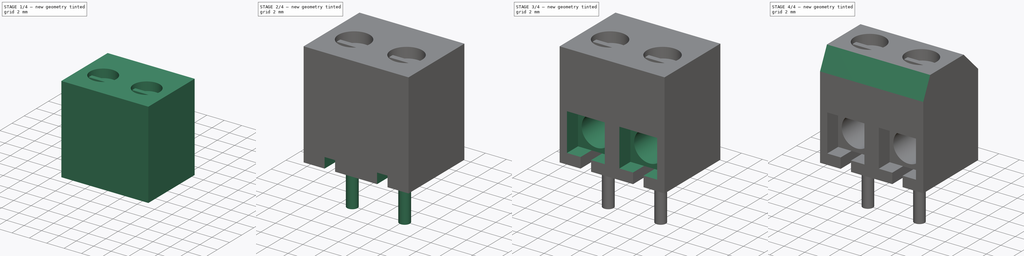
[diagram: build sequence overview — one tinted view per stage of 4, left to right]
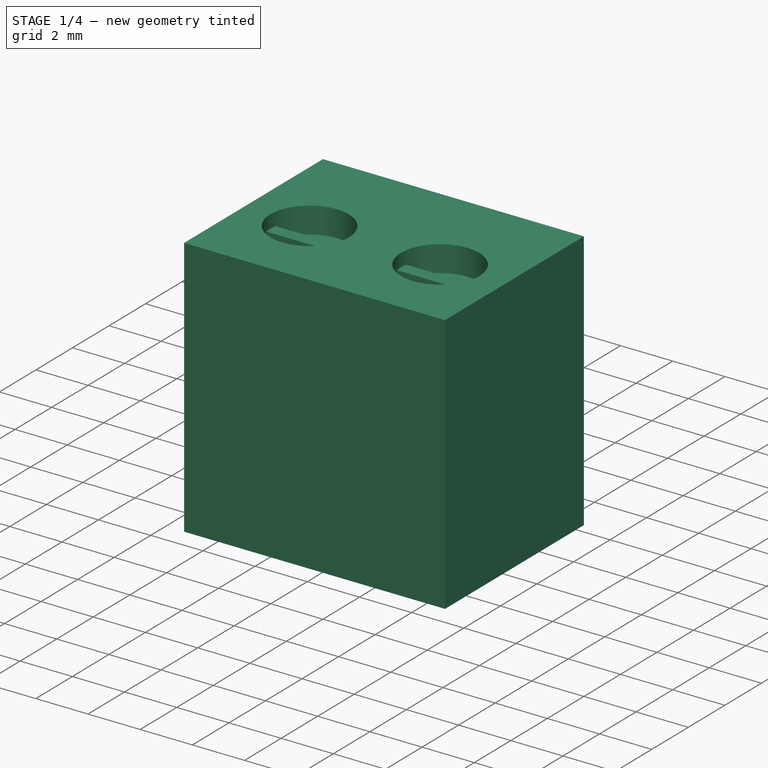
[diagram: stage 1 of 4 — iso view after this stage's code; geometry added in this stage tinted green]
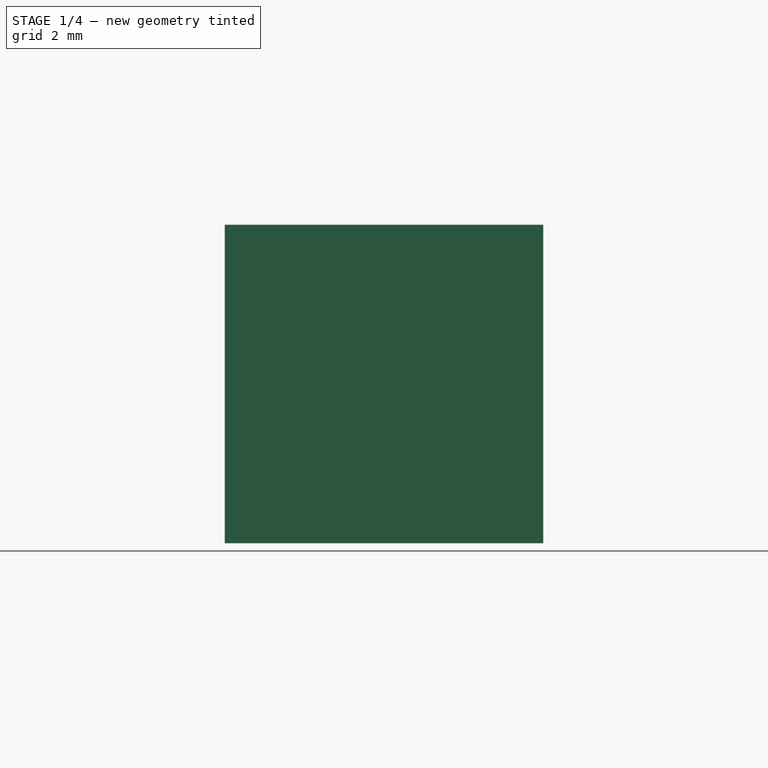
[diagram: stage 1 of 4 — front view after this stage's code; geometry added in this stage tinted green]
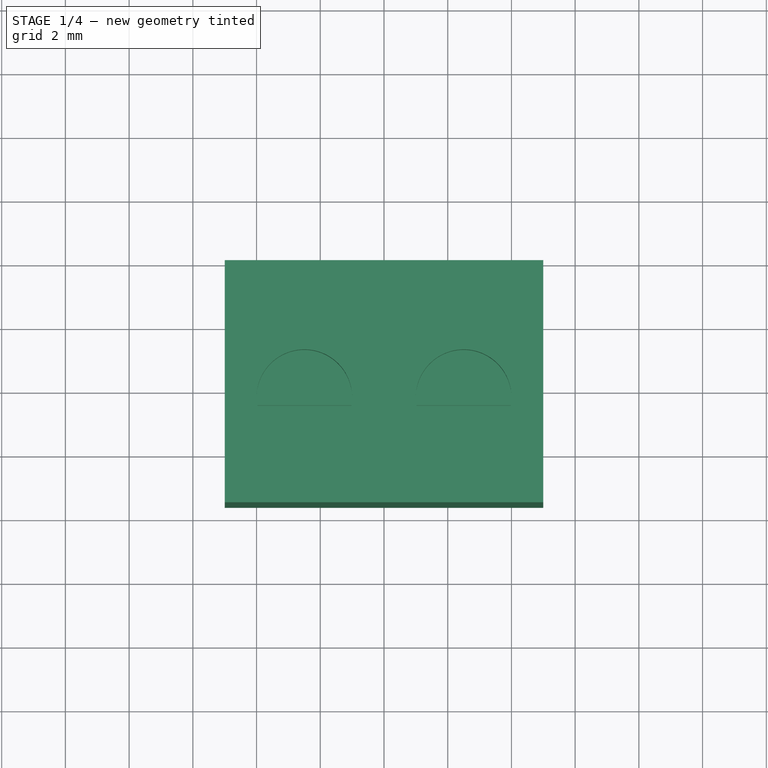
[diagram: stage 1 of 4 — top view after this stage's code; geometry added in this stage tinted green]
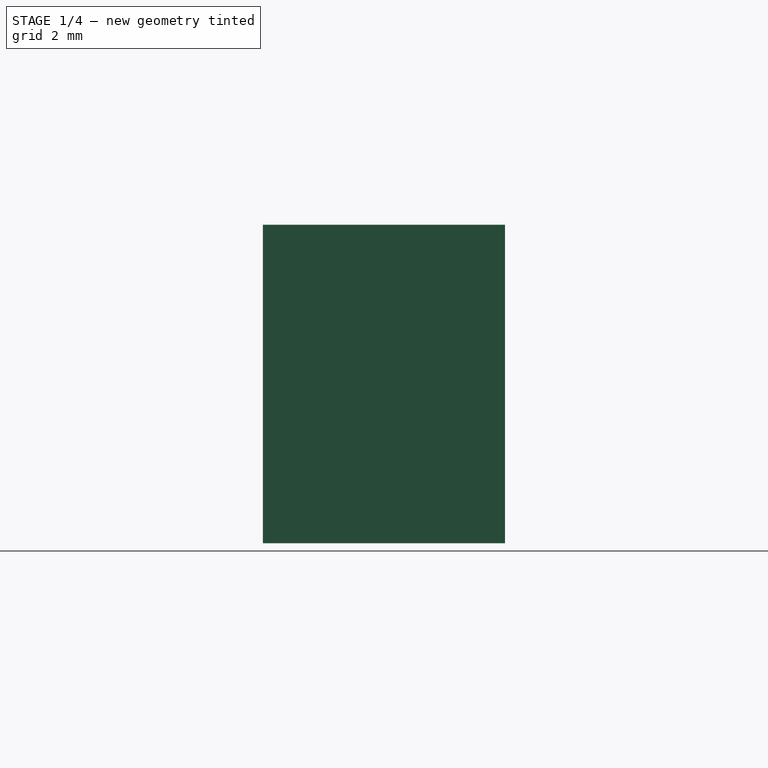
[diagram: stage 1 of 4 — right view after this stage's code; geometry added in this stage tinted green]
FCSTD DOCUMENT  (FreeCAD 0.19R24276 (Git))
Label: borne
License: All rights reserved
LicenseURL: http://en.wikipedia.org/wiki/All_rights_reserved
objects: Sketcher::SketchObject×11, PartDesign::Pocket×6, PartDesign::Pad×4, PartDesign::Chamfer×1, PartDesign::Body×1
note: 34 computed .brp shape members not serialized (recipe doc carries the construction recipe); baked Part::Feature solids carry a one-line shape summary decoded from their .brp

FEATURE [Sketcher::SketchObject] Sketch
  FullyConstrained = true
  MapMode = 5
  Support = -> [XY_Plane]
  sketch-geometry (4):
    g0: LineSegment StartX=-5 StartY=0 StartZ=0 EndX=5 EndY=-6e-15 EndZ=0
    g1: LineSegment StartX=5 StartY=-6e-15 StartZ=0 EndX=5 EndY=-7.6 EndZ=0
    g2: LineSegment StartX=-5 StartY=0 StartZ=0 EndX=-5 EndY=-7.6 EndZ=0
    g3: LineSegment StartX=5 StartY=-7.6 StartZ=0 EndX=-5 EndY=-7.6 EndZ=0
  constraints (11):
    c: PointOnObject(g0,g-1)
    c: Coincident(g1,g0)
    c: Vertical(g1)
    c: Symmetric(g0,g0,g-1)
    c: DistanceX(g0,g0) = 10
    c: DistanceY(g1,g0) = 7.6
    c: Coincident(g2,g0)
    c: Vertical(g2)
    c: Coincident(g3,g1)
    c: Coincident(g3,g2)
    c: Horizontal(g3)
FEATURE [PartDesign::Pad] Pad
  Direction = (1,1,1)
  Length = 10
  Length2 = 100
  Profile = -> Sketch
  Type = 0
FEATURE [Sketcher::SketchObject] Sketch001
  FullyConstrained = true
  MapMode = 5
  Placement = pos=(0,0,10) rot=(0,0,1;0rad)
  Support = -> [Pad]
  sketch-geometry (19):
    g0: LineSegment StartX=0 StartY=0 StartZ=0 EndX=0 EndY=-4.3 EndZ=0
    g1: LineSegment StartX=0 StartY=-4.3 StartZ=0 EndX=2.5 EndY=-4.3 EndZ=0
    g2: LineSegment StartX=0 StartY=-4.3 StartZ=0 EndX=-2.5 EndY=-4.3 EndZ=0
    g3: ArcOfCircle CenterX=2.5 CenterY=-4.3 CenterZ=0 NormalX=0 NormalY=0 NormalZ=1 AngleXU=0 Radius=1.5 StartAngle=2.97414 EndAngle=3.30904
    g4: ArcOfCircle CenterX=-2.5 CenterY=-4.3 CenterZ=0 NormalX=0 NormalY=0 NormalZ=1 AngleXU=0 Radius=1.5 StartAngle=2.97414 EndAngle=3.30904
    g5: LineSegment StartX=2.5 StartY=-4.3 StartZ=0 EndX=2.5 EndY=-4.05 EndZ=0
    g6: LineSegment StartX=2.5 StartY=-4.3 StartZ=0 EndX=2.5 EndY=-4.55 EndZ=0
    g7: LineSegment StartX=2.5 StartY=-4.05 StartZ=0 EndX=3.97902 EndY=-4.05 EndZ=0
    g8: LineSegment StartX=2.5 StartY=-4.55 StartZ=0 EndX=3.97902 EndY=-4.55 EndZ=0
    g9: LineSegment StartX=2.5 StartY=-4.05 StartZ=0 EndX=1.02098 EndY=-4.05 EndZ=0
    g10: LineSegment StartX=2.5 StartY=-4.55 StartZ=0 EndX=1.02098 EndY=-4.55 EndZ=0
    g11: ArcOfCircle CenterX=2.5 CenterY=-4.3 CenterZ=0 NormalX=0 NormalY=0 NormalZ=1 AngleXU=0 Radius=1.5 StartAngle=6.11574 EndAngle=6.45063
    g12: LineSegment StartX=-2.5 StartY=-4.3 StartZ=0 EndX=-2.5 EndY=-4.05 EndZ=0
    g13: LineSegment StartX=-2.5 StartY=-4.3 StartZ=0 EndX=-2.5 EndY=-4.55 EndZ=0
    g14: LineSegment StartX=-2.5 StartY=-4.05 StartZ=0 EndX=-1.02098 EndY=-4.05 EndZ=0
    g15: LineSegment StartX=-2.5 StartY=-4.55 StartZ=0 EndX=-1.02098 EndY=-4.55 EndZ=0
    g16: LineSegment StartX=-2.5 StartY=-4.05 StartZ=0 EndX=-3.97902 EndY=-4.05 EndZ=0
    g17: LineSegment StartX=-2.5 StartY=-4.55 StartZ=0 EndX=-3.97902 EndY=-4.55 EndZ=0
    g18: ArcOfCircle CenterX=-2.5 CenterY=-4.3 CenterZ=0 NormalX=0 NormalY=0 NormalZ=1 AngleXU=0 Radius=1.5 StartAngle=6.11574 EndAngle=6.45063
  constraints (51):
    c: Coincident(g0,g-1)
    c: PointOnObject(g0,g-2)
    c: DistanceY(g0,g-1) = 4.3
    c: Coincident(g1,g0)
    c: Coincident(g2,g0)
    c: Horizontal(g1)
    c: Horizontal(g2)
    c: DistanceX(g0,g1) = 2.5
    c: DistanceX(g2,g0) = 2.5
    c: Coincident(g3,g1)
    c: Coincident(g4,g2)
    c: Diameter(g3) = 3
    c: Diameter(g4) = 3
    c: Coincident(g5,g3)
    c: Coincident(g6,g3)
    c: Vertical(g5)
    c: Symmetric(g5,g6,g3)
    c: DistanceY(g6,g5) = 0.5
    c: Coincident(g7,g5)
    c: Horizontal(g7)
    c: Coincident(g8,g6)
    c: Horizontal(g8)
    c: Coincident(g9,g7)
    c: Coincident(g10,g8)
    c: Horizontal(g10)
    c: Horizontal(g9)
    c: Coincident(g3,g9)
    c: Coincident(g11,g7)
    c: Equal(g3,g11)
    c: Coincident(g3,g10)
    c: Coincident(g11,g8)
    c: Coincident(g3,g11)
    c: Coincident(g12,g4)
    c: Coincident(g13,g4)
    c: Vertical(g12)
    c: Symmetric(g12,g13,g4)
    c: DistanceY(g13,g12) = 0.5
    c: Coincident(g14,g12)
    c: Coincident(g15,g13)
    c: Coincident(g16,g14)
    c: Coincident(g17,g15)
    c: Horizontal(g17)
    c: Horizontal(g14)
    c: Horizontal(g15)
    c: Horizontal(g16)
    c: Coincident(g4,g16)
    c: Coincident(g18,g14)
    c: Equal(g4,g18)
    c: Coincident(g4,g17)
    c: Coincident(g18,g15)
    c: Coincident(g4,g18)
FEATURE [PartDesign::Pocket] Pocket  label="tornillos medio"
  BaseFeature = -> Pad
  Length = 0.5
  Length2 = 100
  Profile = -> Sketch001
  Type = 0
FEATURE [Sketcher::SketchObject] Sketch002
  FullyConstrained = false
  MapMode = 5
  Placement = pos=(0,0,10) rot=(0,0,1;0rad)
  Support = -> [Pocket]
  sketch-geometry (23):
    g0: LineSegment StartX=0 StartY=0 StartZ=0 EndX=0 EndY=-4.3 EndZ=0
    g1: LineSegment StartX=0 StartY=-4.3 StartZ=0 EndX=2.5 EndY=-4.3 EndZ=0
    g2: LineSegment StartX=0 StartY=-4.3 StartZ=0 EndX=-2.5 EndY=-4.3 EndZ=0
    g3: ArcOfCircle CenterX=-2.5 CenterY=-4.3 CenterZ=0 NormalX=0 NormalY=0 NormalZ=1 AngleXU=0 Radius=1.5 StartAngle=0.167448 EndAngle=2.97414
    g4: ArcOfCircle CenterX=2.5 CenterY=-4.3 CenterZ=0 NormalX=0 NormalY=0 NormalZ=1 AngleXU=0 Radius=1.5 StartAngle=0.167448 EndAngle=2.97414
    g5: GeomPoint X=-3.98098 Y=-4.06187 Z=0
    g6: GeomPoint X=-3.97774 Y=-4.55744 Z=0
    g7: GeomPoint X=-1.01902 Y=-4.06187 Z=0
    g8: GeomPoint X=-1.02226 Y=-4.55744 Z=0
    g9: LineSegment StartX=2.5 StartY=-4.3 StartZ=0 EndX=2.5 EndY=-4.05 EndZ=0
    g10: LineSegment StartX=2.5 StartY=-4.3 StartZ=0 EndX=2.5 EndY=-4.55 EndZ=0
    g11: LineSegment StartX=2.5 StartY=-4.05 StartZ=0 EndX=3.97902 EndY=-4.05 EndZ=0
    g12: LineSegment StartX=2.5 StartY=-4.05 StartZ=0 EndX=1.02098 EndY=-4.05 EndZ=0
    g13: LineSegment StartX=2.5 StartY=-4.55 StartZ=0 EndX=3.97902 EndY=-4.55 EndZ=0
    g14: LineSegment StartX=2.5 StartY=-4.55 StartZ=0 EndX=1.02098 EndY=-4.55 EndZ=0
    g15: ArcOfCircle CenterX=2.5 CenterY=-4.3 CenterZ=0 NormalX=0 NormalY=0 NormalZ=1 AngleXU=0 Radius=1.5 StartAngle=3.30904 EndAngle=6.11574
    g16: LineSegment StartX=-2.5 StartY=-4.3 StartZ=0 EndX=-2.5 EndY=-4.05 EndZ=0
    g17: LineSegment StartX=-2.5 StartY=-4.3 StartZ=0 EndX=-2.5 EndY=-4.55 EndZ=0
    g18: LineSegment StartX=-2.5 StartY=-4.05 StartZ=0 EndX=-1.02098 EndY=-4.05 EndZ=0
    g19: LineSegment StartX=-2.5 StartY=-4.55 StartZ=0 EndX=-1.02098 EndY=-4.55 EndZ=0
    g20: LineSegment StartX=-2.5 StartY=-4.05 StartZ=0 EndX=-3.97902 EndY=-4.05 EndZ=0
    g21: LineSegment StartX=-2.5 StartY=-4.55 StartZ=0 EndX=-3.97902 EndY=-4.55 EndZ=0
    g22: ArcOfCircle CenterX=-2.5 CenterY=-4.3 CenterZ=0 NormalX=0 NormalY=0 NormalZ=1 AngleXU=0 Radius=1.5 StartAngle=3.30904 EndAngle=6.11574
  constraints (56):
    c: Coincident(g0,g-1)
    c: PointOnObject(g0,g-2)
    c: Coincident(g1,g0)
    c: Horizontal(g1)
    c: Coincident(g2,g0)
    c: Horizontal(g2)
    c: DistanceX(g0,g1) = 2.5
    c: DistanceX(g2,g0) = 2.5
    c: DistanceY(g0,g-1) = 4.3
    c: Coincident(g3,g2)
    c: Coincident(g4,g1)
    c: Diameter(g4) = 3
    c: Diameter(g3) = 3
    c: PointOnObject(g5,g3)
    c: PointOnObject(g6,g3)
    c: PointOnObject(g7,g3)
    c: PointOnObject(g8,g3)
    c: Coincident(g9,g4)
    c: Vertical(g9)
    c: Coincident(g10,g4)
    c: Symmetric(g9,g10,g4)
    c: DistanceY(g10,g9) = 0.5
    c: Coincident(g11,g9)
    c: Horizontal(g11)
    c: Coincident(g12,g11)
    c: Horizontal(g12)
    c: Coincident(g13,g10)
    c: Horizontal(g13)
    c: Coincident(g14,g13)
    c: Horizontal(g14)
    c: PointOnObject(g14,g4)
    c: Coincident(g4,g11)
    c: Coincident(g15,g13)
    c: Equal(g4,g15)
    c: Coincident(g4,g12)
    c: Coincident(g4,g15)
    c: PointOnObject(g15,g14)
    c: Coincident(g16,g3)
    c: Coincident(g17,g3)
    c: Vertical(g17)
    c: Symmetric(g16,g17,g3)
    c: DistanceY(g17,g16) = 0.5
    c: Coincident(g18,g16)
    c: Horizontal(g18)
    c: Coincident(g19,g17)
    c: Horizontal(g19)
    c: Coincident(g20,g18)
    c: Horizontal(g20)
    c: Coincident(g21,g19)
    c: Horizontal(g21)
    c: Coincident(g3,g18)
    c: Coincident(g22,g19)
    c: Equal(g3,g22)
    c: Coincident(g3,g20)
    c: Coincident(g22,g21)
    c: Coincident(g3,g22)
FEATURE [PartDesign::Pocket] Pocket001  label="tornillo circulo"
  BaseFeature = -> Pocket
  Length = 1
  Length2 = 100
  Profile = -> Sketch002
  Type = 0
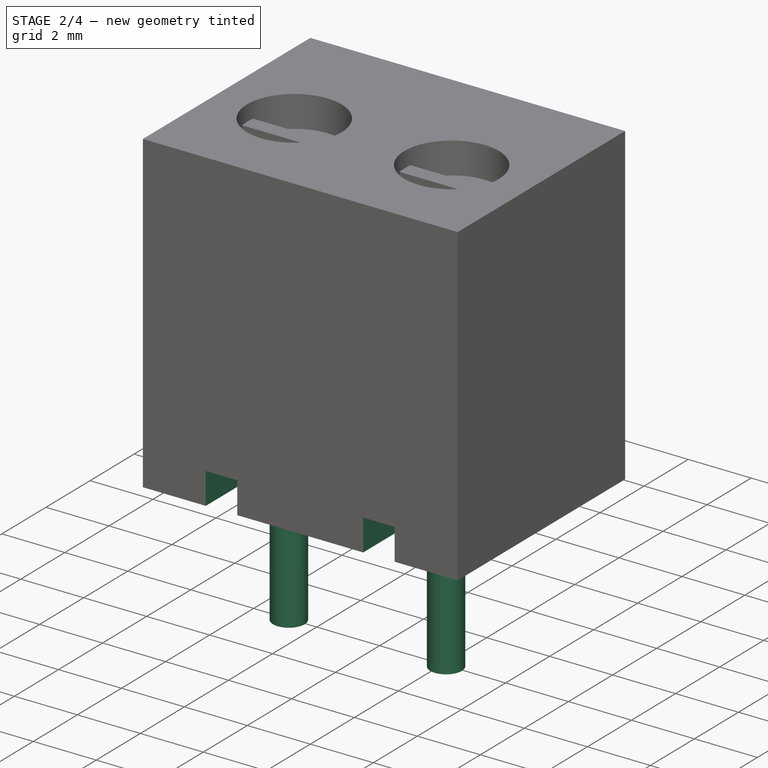
[diagram: stage 2 of 4 — iso view after this stage's code; geometry added in this stage tinted green]
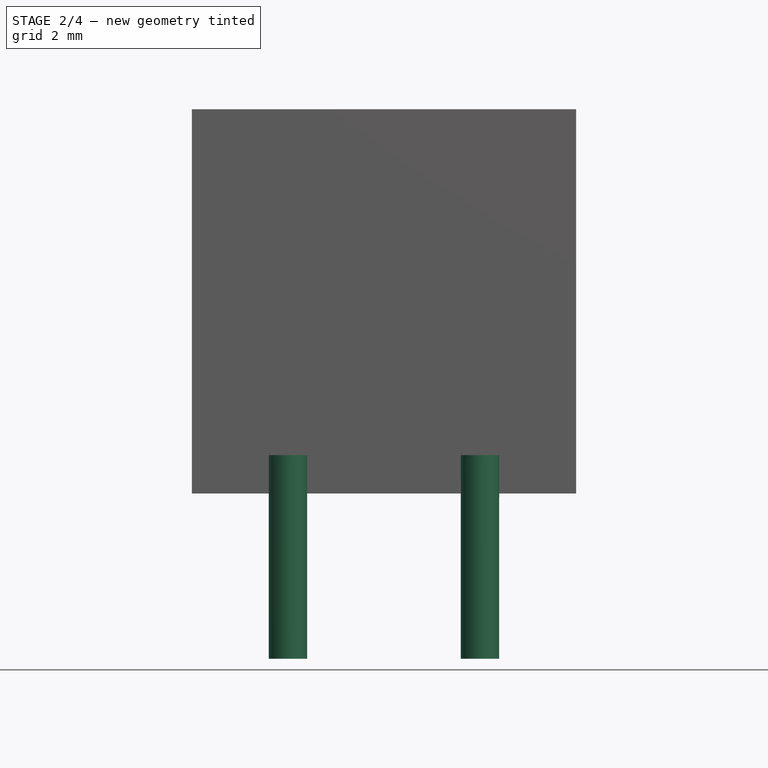
[diagram: stage 2 of 4 — front view after this stage's code; geometry added in this stage tinted green]
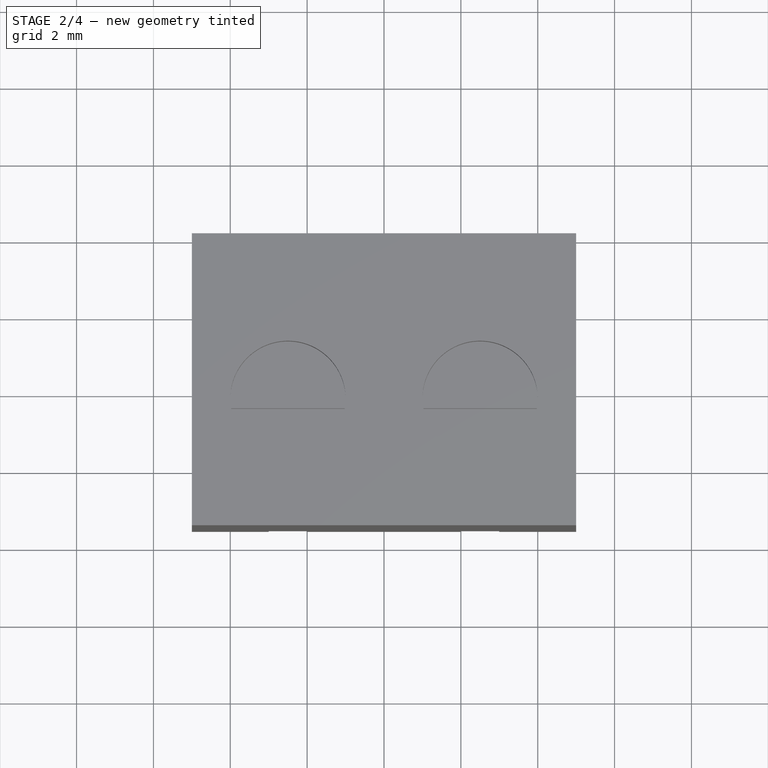
[diagram: stage 2 of 4 — top view after this stage's code; geometry added in this stage tinted green]
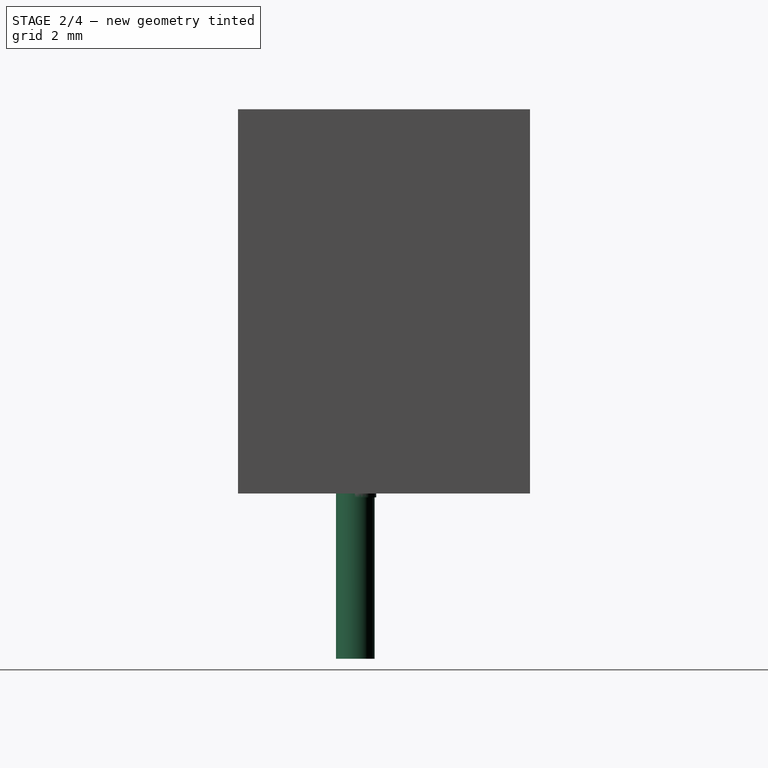
[diagram: stage 2 of 4 — right view after this stage's code; geometry added in this stage tinted green]
FEATURE [Sketcher::SketchObject] Sketch003
  FullyConstrained = true
  MapMode = 5
  Placement = pos=(0,0,0) rot=(1,0,0;3.14159rad)
  Support = -> [Pocket001]
  sketch-geometry (7):
    g0: LineSegment StartX=0 StartY=0 StartZ=0 EndX=5 EndY=0 EndZ=0
    g1: LineSegment StartX=0 StartY=0 StartZ=0 EndX=-5 EndY=0 EndZ=0
    g2: LineSegment StartX=0 StartY=0 StartZ=0 EndX=0 EndY=4.5 EndZ=0
    g3: LineSegment StartX=0 StartY=4.5 StartZ=0 EndX=2.5 EndY=4.5 EndZ=0
    g4: LineSegment StartX=0 StartY=4.5 StartZ=0 EndX=-2.5 EndY=4.5 EndZ=0
    g5: Circle CenterX=-2.5 CenterY=4.5 CenterZ=0 NormalX=0 NormalY=0 NormalZ=1 AngleXU=0 Radius=0.5
    g6: Circle CenterX=2.5 CenterY=4.5 CenterZ=0 NormalX=0 NormalY=0 NormalZ=1 AngleXU=0 Radius=0.5
  constraints (18):
    c: Coincident(g0,g-1)
    c: PointOnObject(g0,g-1)
    c: Coincident(g1,g-1)
    c: DistanceX(g1,g0) = 10
    c: Symmetric(g1,g0,g-1)
    c: Coincident(g2,g-1)
    c: PointOnObject(g2,g-2)
    c: DistanceY(g-1,g2) = 4.5
    c: Coincident(g3,g2)
    c: Coincident(g4,g2)
    c: Horizontal(g3)
    c: Horizontal(g4)
    c: DistanceX(g2,g3) = 2.5
    c: DistanceX(g4,g2) = 2.5
    c: Coincident(g5,g4)
    c: Coincident(g6,g3)
    c: Diameter(g6) = 1
    c: Diameter(g5) = 1
FEATURE [PartDesign::Pad] Pad001  label="pines"
  BaseFeature = -> Pocket001
  Direction = (1,1,1)
  Length = 0.1
  Length2 = 100
  Profile = -> Sketch003
  Type = 0
FEATURE [Sketcher::SketchObject] Sketch004
  FullyConstrained = false
  MapMode = 5
  Placement = pos=(0,-7.6,0) rot=(1,0,0;1.5708rad)
  Support = -> [Pad001]
  sketch-geometry (16):
    g0: LineSegment StartX=0 StartY=0 StartZ=0 EndX=5 EndY=0 EndZ=0
    g1: LineSegment StartX=0 StartY=0 StartZ=0 EndX=-5 EndY=0 EndZ=0
    g2: GeomPoint X=-2.5 Y=0 Z=0
    g3: GeomPoint X=2.5 Y=0 Z=0
    g4: LineSegment StartX=-2.5 StartY=0 StartZ=0 EndX=-2 EndY=0 EndZ=0
    g5: LineSegment StartX=-2.5 StartY=0 StartZ=0 EndX=-3 EndY=0 EndZ=0
    g6: LineSegment StartX=2.5 StartY=0 StartZ=0 EndX=3 EndY=0 EndZ=0
    g7: LineSegment StartX=2.5 StartY=0 StartZ=0 EndX=2 EndY=0 EndZ=0
    g8: LineSegment StartX=-2 StartY=0 StartZ=0 EndX=-2 EndY=1 EndZ=0
    g9: LineSegment StartX=-3 StartY=0 StartZ=0 EndX=-3 EndY=1 EndZ=0
    g10: LineSegment StartX=-3 StartY=1 StartZ=0 EndX=-2 EndY=1 EndZ=0
    g11: LineSegment StartX=2 StartY=0 StartZ=0 EndX=1.99685 EndY=1 EndZ=0
    g12: LineSegment StartX=1.99685 StartY=1 StartZ=0 EndX=3 EndY=1 EndZ=0
    g13: LineSegment StartX=3 StartY=1 StartZ=0 EndX=3 EndY=0 EndZ=0
    g14: LineSegment StartX=-3 StartY=0 StartZ=0 EndX=-2 EndY=0 EndZ=0
    g15: LineSegment StartX=2 StartY=0 StartZ=0 EndX=3 EndY=0 EndZ=0
  constraints (38):
    c: Coincident(g0,g-1)
    c: Horizontal(g0)
    c: Coincident(g1,g-1)
    c: Symmetric(g1,g0,g-1)
    c: DistanceX(g1,g0) = 10
    c: PointOnObject(g2,g1)
    c: PointOnObject(g3,g0)
    c: DistanceX(g-1,g3) = 2.5
    c: DistanceX(g2,g-1) = 2.5
    c: Coincident(g4,g2)
    c: PointOnObject(g4,g1)
    c: Coincident(g5,g2)
    c: Coincident(g6,g3)
    c: PointOnObject(g6,g0)
    c: Coincident(g7,g3)
    c: Symmetric(g7,g6,g3)
    c: Symmetric(g5,g4,g2)
    c: DistanceX(g7,g6) = 1
    c: DistanceX(g5,g4) = 1
    c: Coincident(g8,g4)
    c: Vertical(g8)
    c: Coincident(g9,g5)
    c: Vertical(g9)
    c: Coincident(g10,g9)
    c: Coincident(g10,g8)
    c: Horizontal(g10)
    c: Coincident(g11,g7)
    c: Coincident(g13,g12)
    c: Coincident(g12,g11)
    c: Horizontal(g12)
    c: Vertical(g13)
    c: Coincident(g13,g6)
    c: DistanceY(g13,g12) = 1
    c: DistanceY(g8,g8) = 1
    c: Coincident(g14,g9)
    c: Coincident(g14,g8)
    c: Coincident(g15,g11)
    c: Coincident(g15,g13)
FEATURE [PartDesign::Pocket] Pocket002  label="vaciado pines front"
  BaseFeature = -> Pad001
  Length = 3.05
  Length2 = 100
  Profile = -> Sketch004
  Type = 0
FEATURE [Sketcher::SketchObject] Sketch005
  FullyConstrained = true
  MapMode = 5
  Placement = pos=(0,2e-16,1) rot=(1,0,0;3.14159rad)
  Support = -> [Pocket002]
FEATURE [Sketcher::SketchObject] Sketch006
  ExternalGeometry = -> [Pocket002]
  FullyConstrained = false
  MapMode = 5
  Placement = pos=(0,2e-16,1) rot=(1,0,0;3.14159rad)
  Support = -> [Pocket002]
  sketch-geometry (7):
    g0: LineSegment StartX=-3 StartY=7.6 StartZ=0 EndX=-2 EndY=7.6 EndZ=0
    g1: GeomPoint X=-2.5 Y=7.6 Z=0
    g2: GeomPoint X=2.49685 Y=7.6 Z=0
    g3: LineSegment StartX=-2.5 StartY=7.6 StartZ=0 EndX=-2.5 EndY=4.5 EndZ=0
    g4: LineSegment StartX=2.49685 StartY=7.6 StartZ=0 EndX=2.49685 EndY=4.5 EndZ=0
    g5: Circle CenterX=-2.5 CenterY=4.54509 CenterZ=0 NormalX=0 NormalY=0 NormalZ=1 AngleXU=0 Radius=0.5
    g6: Circle CenterX=2.49685 CenterY=4.54997 CenterZ=0 NormalX=0 NormalY=0 NormalZ=1 AngleXU=0 Radius=0.5
  constraints (16):
    c: Coincident(g0,g-4)
    c: Coincident(g0,g-4)
    c: PointOnObject(g1,g0)
    c: DistanceX(g0,g1) = 0.5
    c: PointOnObject(g2,g-3)
    c: DistanceX(g-3,g2) = 0.5
    c: Coincident(g3,g1)
    c: Vertical(g3)
    c: Coincident(g4,g2)
    c: Vertical(g4)
    c: DistanceY(g4,g2) = 3.1
    c: DistanceY(g3,g1) = 3.1
    c: PointOnObject(g5,g3)
    c: PointOnObject(g6,g4)
    c: Diameter(g6) = 1
    c: Diameter(g5) = 1
FEATURE [PartDesign::Pad] Pad002  label="pines largo"
  BaseFeature = -> Pocket002
  Direction = (1,1,1)
  Length = 5.3
  Length2 = 100
  Profile = -> Sketch006
  Type = 0
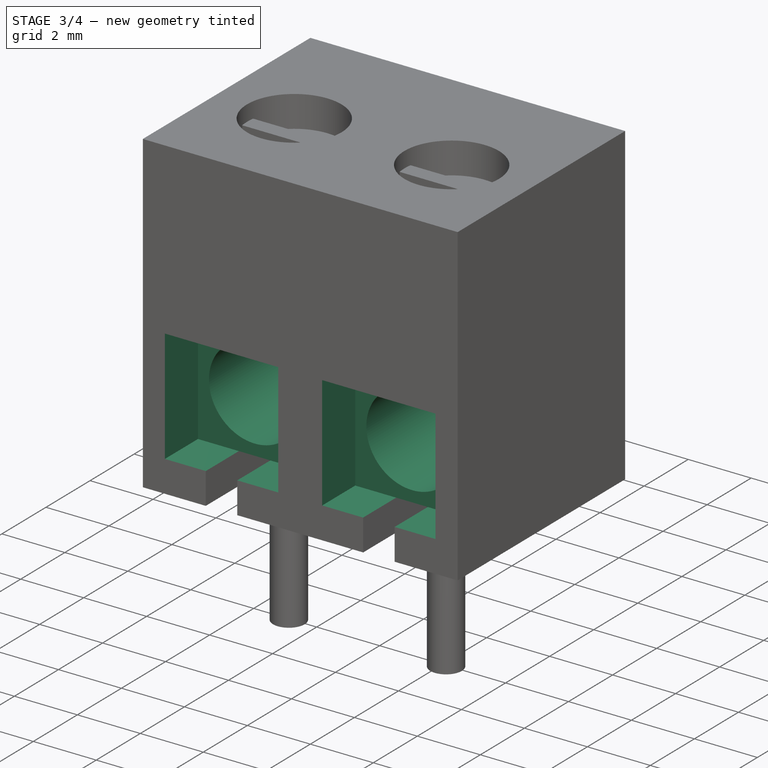
[diagram: stage 3 of 4 — iso view after this stage's code; geometry added in this stage tinted green]
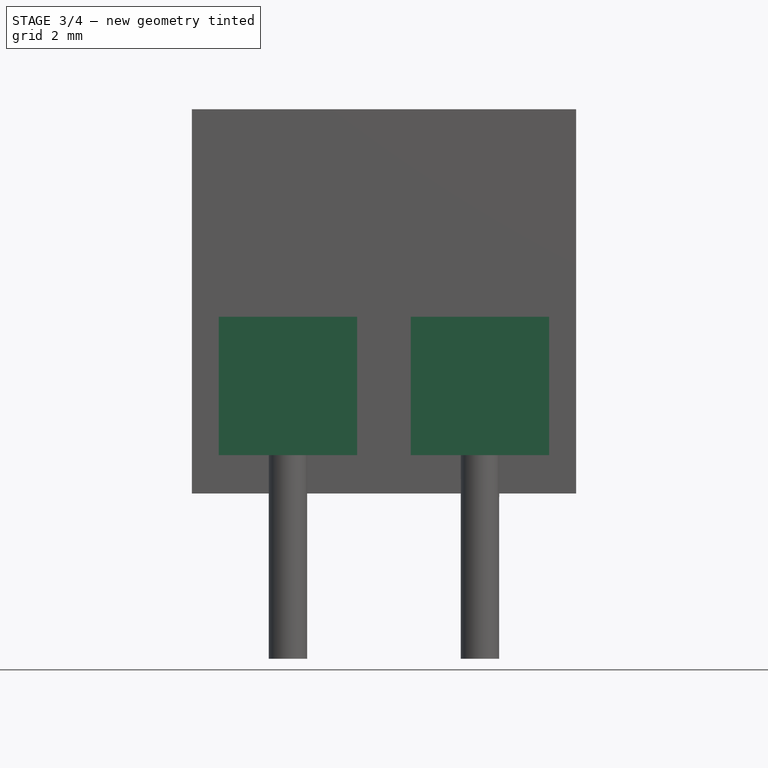
[diagram: stage 3 of 4 — front view after this stage's code; geometry added in this stage tinted green]
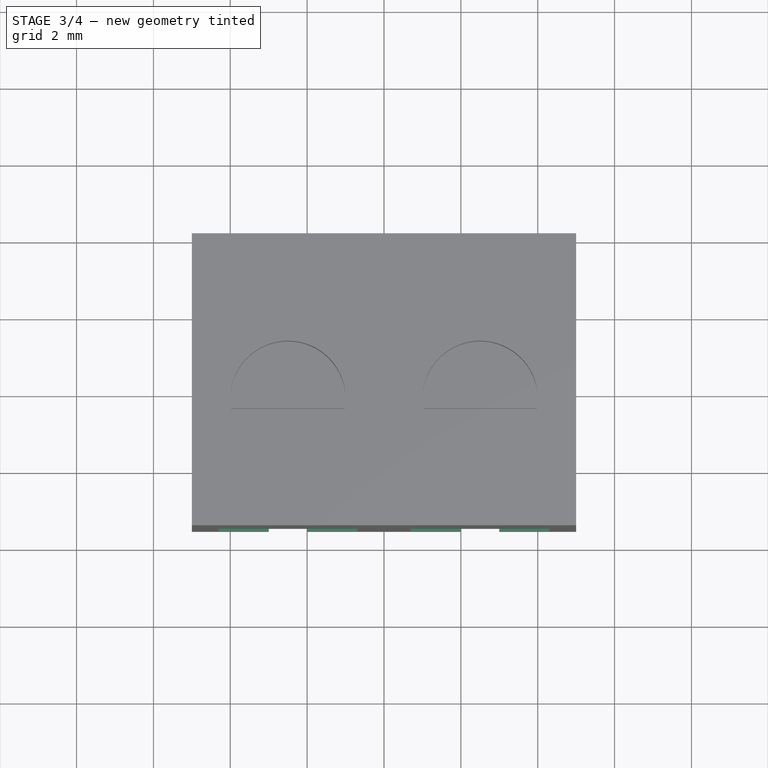
[diagram: stage 3 of 4 — top view after this stage's code; geometry added in this stage tinted green]
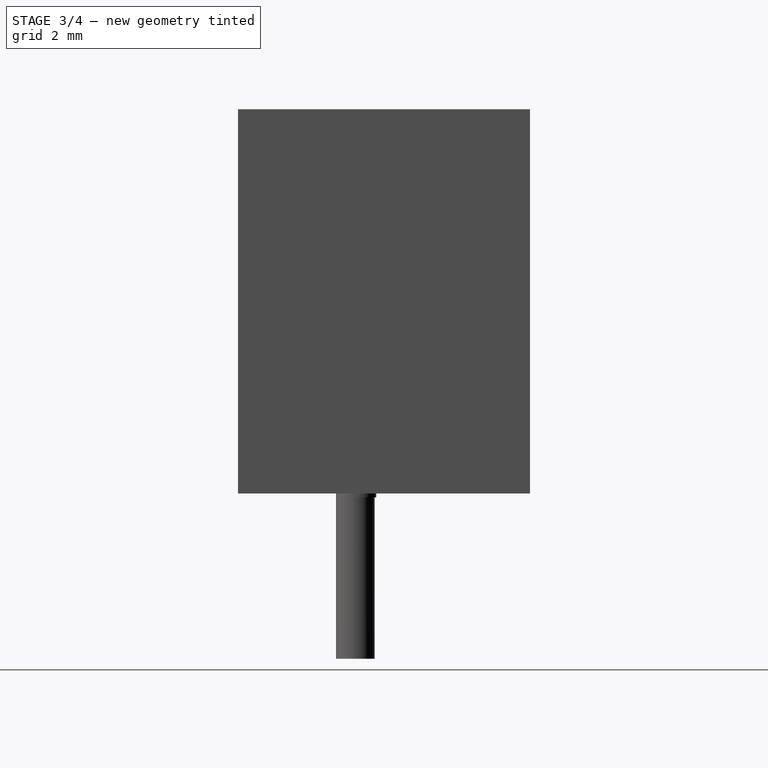
[diagram: stage 3 of 4 — right view after this stage's code; geometry added in this stage tinted green]
FEATURE [Sketcher::SketchObject] Sketch007
  ExternalGeometry = -> [Pad002]
  FullyConstrained = true
  MapMode = 5
  Placement = pos=(0,-7.6,0) rot=(1,0,0;1.5708rad)
  Support = -> [Pad002]
  sketch-geometry (14):
    g0: LineSegment StartX=1.99685 StartY=1 StartZ=0 EndX=2.99685 EndY=1 EndZ=0
    g1: LineSegment StartX=-2 StartY=1 StartZ=0 EndX=-3 EndY=1 EndZ=0
    g2: GeomPoint X=-2.5 Y=1 Z=0
    g3: GeomPoint X=2.49685 Y=1 Z=0
    g4: LineSegment StartX=2.49685 StartY=1 StartZ=0 EndX=4.29685 EndY=1 EndZ=0
    g5: LineSegment StartX=2.49685 StartY=1 StartZ=0 EndX=0.696847 EndY=1 EndZ=0
    g6: LineSegment StartX=-2.5 StartY=1 StartZ=0 EndX=-0.7 EndY=1 EndZ=0
    g7: LineSegment StartX=-2.5 StartY=1 StartZ=0 EndX=-4.3 EndY=1 EndZ=0
    g8: LineSegment StartX=-4.3 StartY=1 StartZ=0 EndX=-4.3 EndY=4.6 EndZ=0
    g9: LineSegment StartX=-4.3 StartY=4.6 StartZ=0 EndX=-0.7 EndY=4.6 EndZ=0
    g10: LineSegment StartX=-0.7 StartY=1 StartZ=0 EndX=-0.7 EndY=4.6 EndZ=0
    g11: LineSegment StartX=0.696847 StartY=1 StartZ=0 EndX=0.696847 EndY=4.6 EndZ=0
    g12: LineSegment StartX=0.696847 StartY=4.6 StartZ=0 EndX=4.29685 EndY=4.6 EndZ=0
    g13: LineSegment StartX=4.29685 StartY=4.6 StartZ=0 EndX=4.29685 EndY=1 EndZ=0
  constraints (36):
    c: DistanceY(g-3,g-3) = 1
    c: Coincident(g0,g-3)
    c: Horizontal(g0)
    c: Coincident(g1,g-4)
    c: Horizontal(g1)
    c: DistanceX(g0,g0) = 1
    c: DistanceX(g1,g1) = 1
    c: Symmetric(g0,g0,g3)
    c: Symmetric(g1,g1,g2)
    c: Coincident(g4,g3)
    c: Horizontal(g4)
    c: Coincident(g5,g4)
    c: Horizontal(g5)
    c: Coincident(g6,g2)
    c: Coincident(g7,g6)
    c: Horizontal(g7)
    c: Coincident(g8,g7)
    c: Vertical(g8)
    c: Coincident(g9,g8)
    c: Horizontal(g9)
    c: Coincident(g10,g6)
    c: Coincident(g10,g9)
    c: Coincident(g11,g5)
    c: Vertical(g11)
    c: Coincident(g12,g11)
    c: Horizontal(g12)
    c: Coincident(g13,g12)
    c: Coincident(g13,g4)
    c: Vertical(g13)
    c: Vertical(g10)
    c: DistanceX(g4,g4) = 1.8
    c: DistanceX(g5,g4) = 1.8
    c: Symmetric(g7,g6,g6)
    c: DistanceX(g7,g6) = 3.6
    c: DistanceY(g5,g11) = 3.6
    c: DistanceY(g6,g9) = 3.6
FEATURE [PartDesign::Pocket] Pocket003  label="cubos front"
  BaseFeature = -> Pad002
  Length = 1.5
  Length2 = 100
  Profile = -> Sketch007
  Type = 0
FEATURE [Sketcher::SketchObject] Sketch008
  FullyConstrained = true
  MapMode = 5
  Placement = pos=(0,-7.6,0) rot=(1,0,0;1.5708rad)
  Support = -> [Pocket003]
  sketch-geometry (6):
    g0: LineSegment StartX=0 StartY=0 StartZ=0 EndX=2.5 EndY=0 EndZ=0
    g1: LineSegment StartX=0 StartY=0 StartZ=0 EndX=-2.5 EndY=0 EndZ=0
    g2: LineSegment StartX=-2.5 StartY=0 StartZ=0 EndX=-2.5 EndY=2.8 EndZ=0
    g3: LineSegment StartX=2.5 StartY=0 StartZ=0 EndX=2.5 EndY=2.8 EndZ=0
    g4: Circle CenterX=2.5 CenterY=2.8 CenterZ=0 NormalX=0 NormalY=0 NormalZ=1 AngleXU=0 Radius=1.45
    g5: Circle CenterX=-2.5 CenterY=2.8 CenterZ=0 NormalX=0 NormalY=0 NormalZ=1 AngleXU=0 Radius=1.45
  constraints (16):
    c: Coincident(g0,g-1)
    c: PointOnObject(g0,g-1)
    c: Coincident(g1,g-1)
    c: PointOnObject(g1,g-1)
    c: DistanceX(g0,g0) = 2.5
    c: DistanceX(g1,g1) = 2.5
    c: Coincident(g2,g1)
    c: Vertical(g2)
    c: Coincident(g3,g0)
    c: Vertical(g3)
    c: DistanceY(g1,g2) = 2.8
    c: DistanceY(g3,g3) = 2.8
    c: Coincident(g4,g3)
    c: Coincident(g5,g2)
    c: Diameter(g4) = 2.9
    c: Diameter(g5) = 2.9
FEATURE [PartDesign::Pocket] Pocket004  label="circulos front"
  BaseFeature = -> Pocket003
  Length = 6.6
  Length2 = 100
  Profile = -> Sketch008
  Type = 0
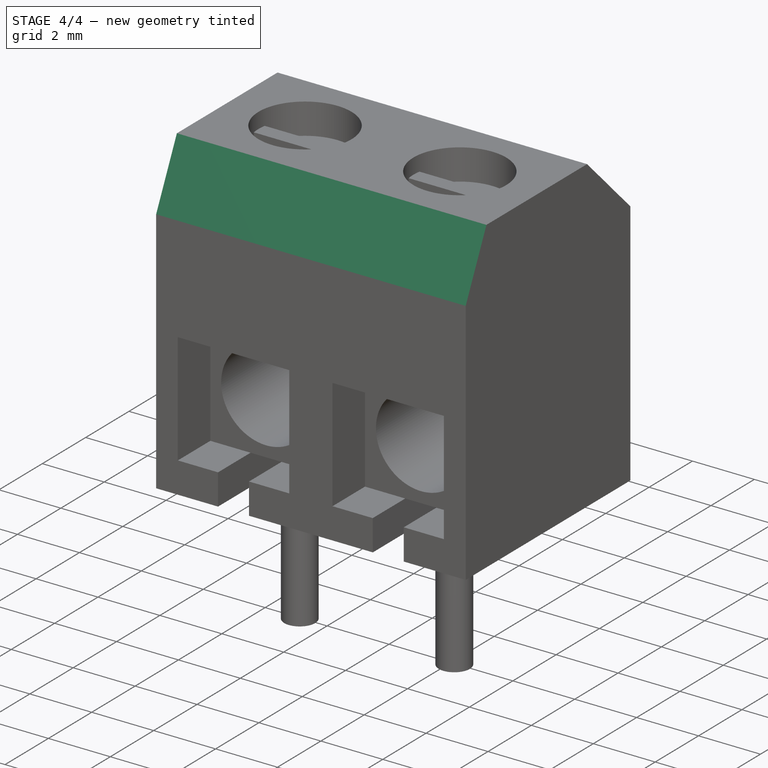
[diagram: stage 4 of 4 — iso view after this stage's code; geometry added in this stage tinted green]
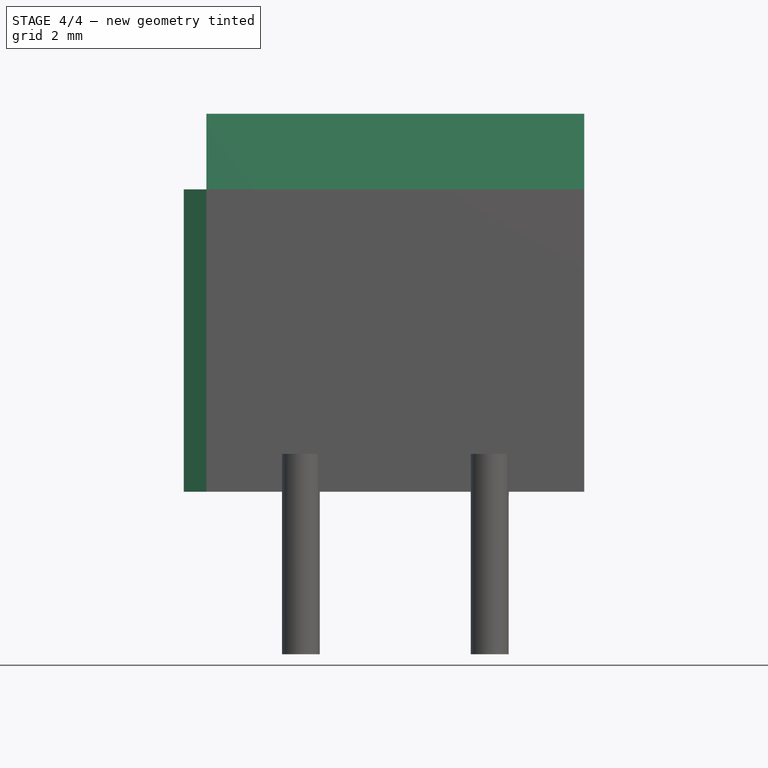
[diagram: stage 4 of 4 — front view after this stage's code; geometry added in this stage tinted green]
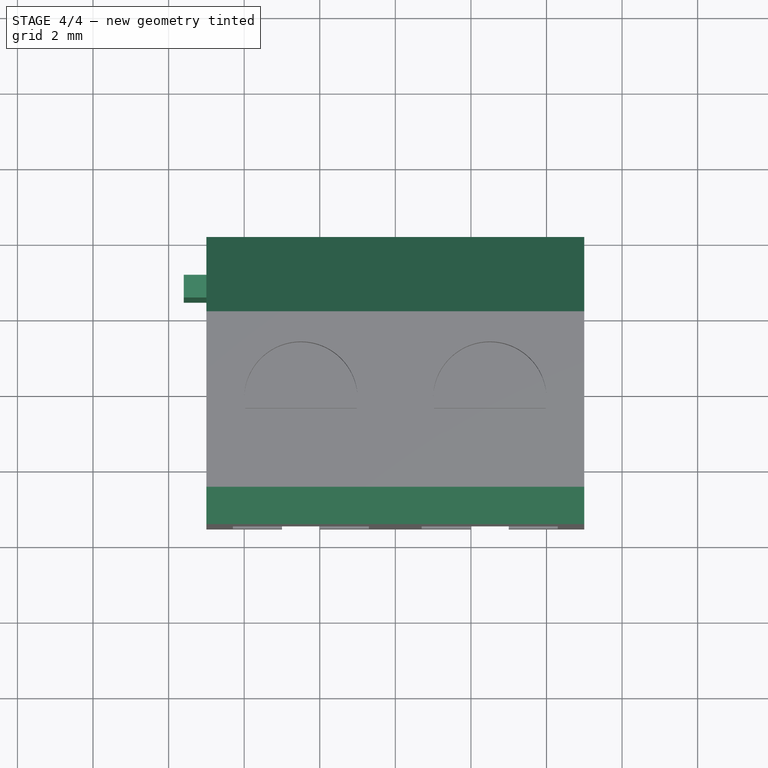
[diagram: stage 4 of 4 — top view after this stage's code; geometry added in this stage tinted green]
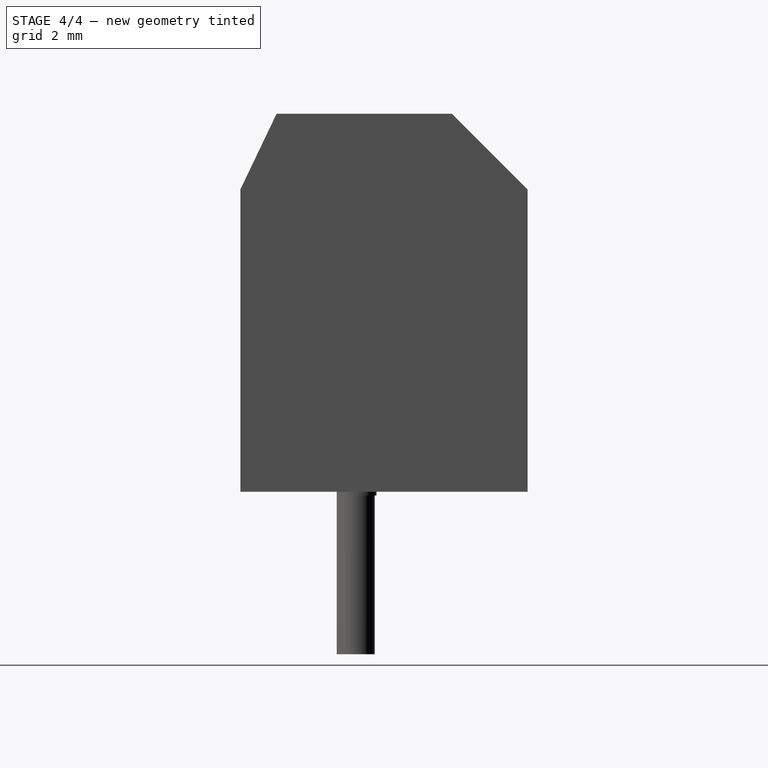
[diagram: stage 4 of 4 — right view after this stage's code; geometry added in this stage tinted green]
FEATURE [Sketcher::SketchObject] Sketch009
  FullyConstrained = false
  MapMode = 5
  Placement = pos=(-5,0,0) rot=(0.57735,-0.57735,-0.57735;2.0944rad)
  Support = -> [Pocket004]
  sketch-geometry (6):
    g0: LineSegment StartX=1 StartY=0 StartZ=0 EndX=1 EndY=8 EndZ=0
    g1: LineSegment StartX=1 StartY=8 StartZ=0 EndX=1.6 EndY=8 EndZ=0
    g2: LineSegment StartX=1.6 StartY=8 StartZ=0 EndX=1.6 EndY=0 EndZ=0
    g3: LineSegment StartX=1 StartY=0 StartZ=0 EndX=1.2 EndY=0 EndZ=0
    g4: LineSegment StartX=1 StartY=8 StartZ=0 EndX=1.6 EndY=8 EndZ=0
    g5: LineSegment StartX=1.6 StartY=0 StartZ=0 EndX=1 EndY=0 EndZ=0
  constraints (15):
    c: DistanceX(g-1,g0) = 1
    c: Vertical(g0)
    c: Coincident(g1,g0)
    c: Horizontal(g1)
    c: DistanceX(g0,g1) = 0.6
    c: PointOnObject(g2,g-1)
    c: Coincident(g2,g1)
    c: Vertical(g2)
    c: DistanceY(g2,g2) = 8
    c: Coincident(g3,g0)
    c: Coincident(g4,g0)
    c: Coincident(g4,g2)
    c: Coincident(g5,g2)
    c: Coincident(g5,g0)
    c: Horizontal(g5)
FEATURE [PartDesign::Pad] Pad003  label="barra lateral"
  BaseFeature = -> Pocket004
  Direction = (1,1,1)
  Length = 0.6
  Length2 = 100
  Profile = -> Sketch009
  Type = 0
FEATURE [PartDesign::Chamfer] Chamfer
  Angle = 45
  Base = -> Pad003 [Edge4]
  BaseFeature = -> Pad003
  ChamferType = 0
  FlipDirection = false
  Size = 2
  Size2 = 1
  SupportTransform = false
FEATURE [Sketcher::SketchObject] Sketch010
  ExternalGeometry = -> [Chamfer]
  FullyConstrained = false
  MapMode = 5
  Placement = pos=(-5,0,0) rot=(0.57735,-0.57735,-0.57735;2.0944rad)
  Support = -> [Chamfer]
  sketch-geometry (5):
    g0: LineSegment StartX=0 StartY=0 StartZ=0 EndX=3.1e-15 EndY=8 EndZ=0
    g1: LineSegment StartX=3.1e-15 StartY=8 StartZ=0 EndX=7.6 EndY=8 EndZ=0
    g2: LineSegment StartX=7.6 StartY=8 StartZ=0 EndX=7.6 EndY=10 EndZ=0
    g3: LineSegment StartX=6.64278 StartY=10 StartZ=0 EndX=7.6 EndY=8 EndZ=0
    g4: LineSegment StartX=7.6 StartY=10 StartZ=0 EndX=6.64278 EndY=10 EndZ=0
  constraints (11):
    c: Coincident(g0,g-1)
    c: Coincident(g0,g-3)
    c: Coincident(g1,g0)
    c: Horizontal(g1)
    c: DistanceX(g0,g1) = 7.6
    c: Coincident(g2,g1)
    c: Coincident(g3,g2)
    c: Coincident(g4,g2)
    c: Coincident(g4,g3)
    c: Coincident(g2,g-4)
    c: Horizontal(g4)
FEATURE [PartDesign::Pocket] Pocket005  label="chamfer 2  "
  BaseFeature = -> Chamfer
  Length = 5
  Length2 = 100
  Profile = -> Sketch010
  Type = 1
FEATURE [PartDesign::Body] Body  label="base cubo"
  Group = -> [Sketch,Pad,Sketch001,Pocket,Sketch002,Pocket001,Sketch003,Pad001,Sketch004,Pocket002,Sketch005,Sketch006,Pad002,Sketch007,Pocket003,Sketch008,Pocket004,Sketch009,Pad003,Chamfer,Sketch010,Pocket005]
  Origin = -> Origin
  Tip = -> Pocket005
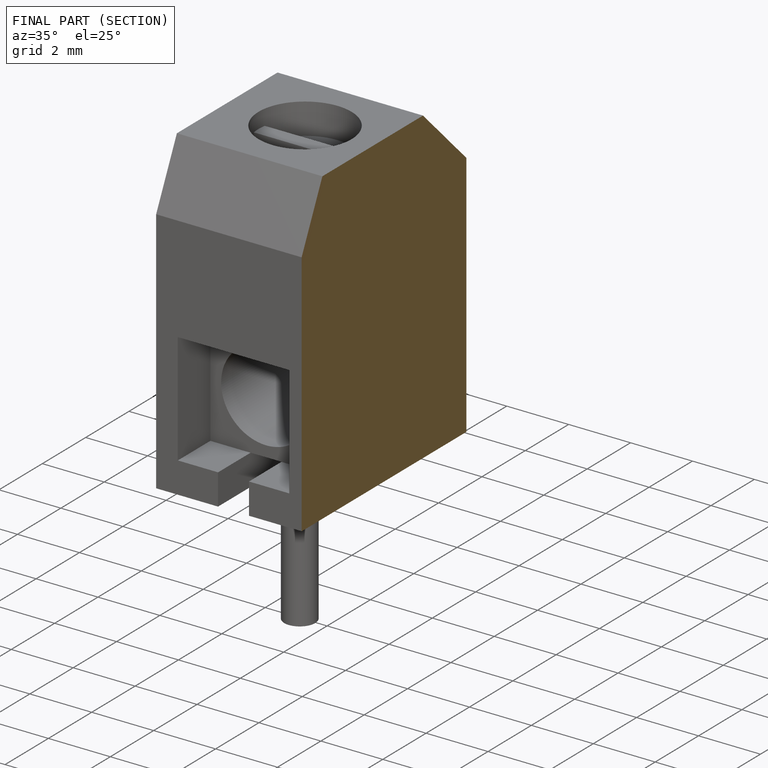
[diagram: finished part — half-section view (interior)]
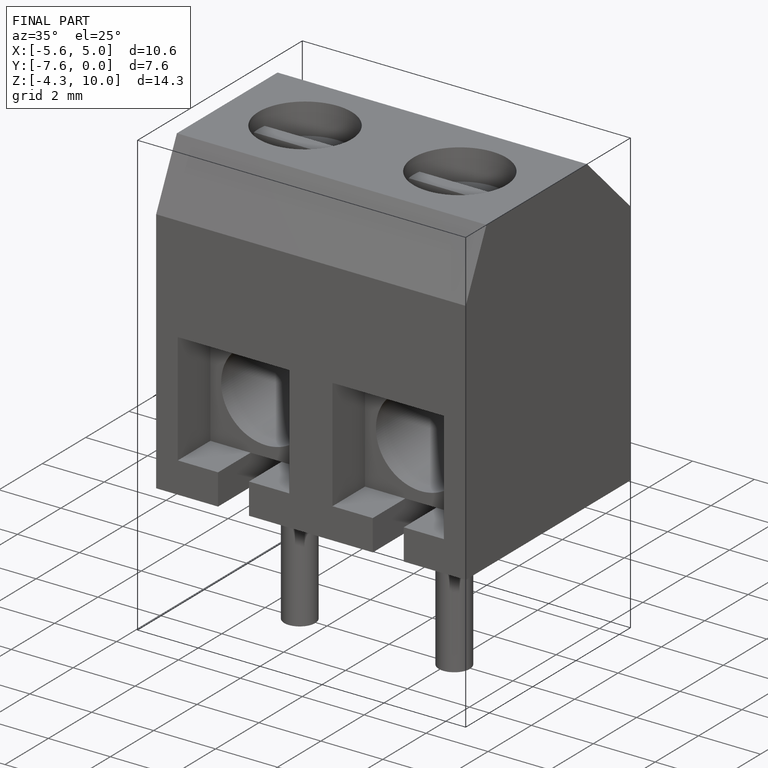
[diagram: finished part — iso view with bounding-box wireframe]
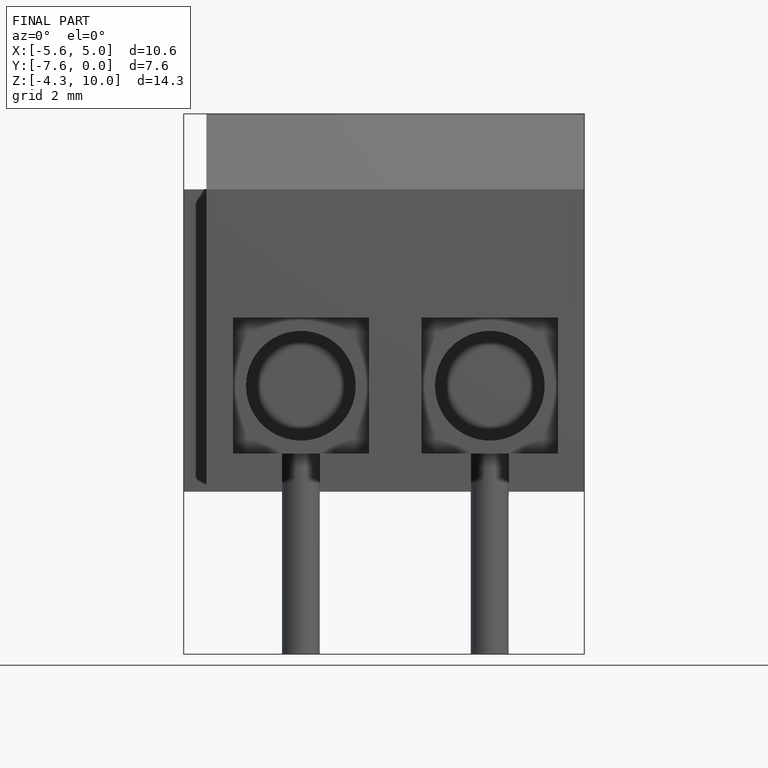
[diagram: finished part — front view with bounding-box wireframe]
